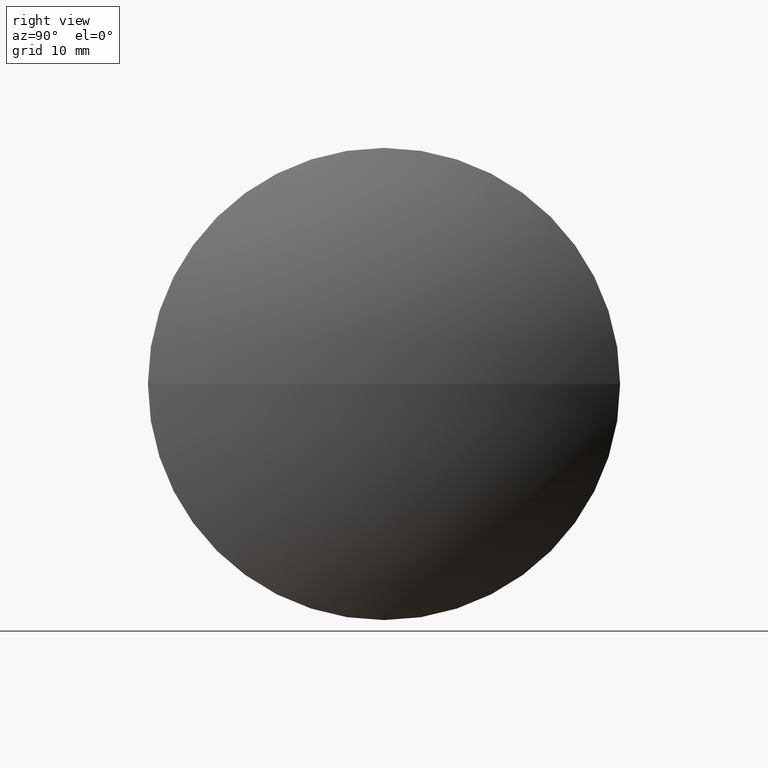
[diagram: clean part render]
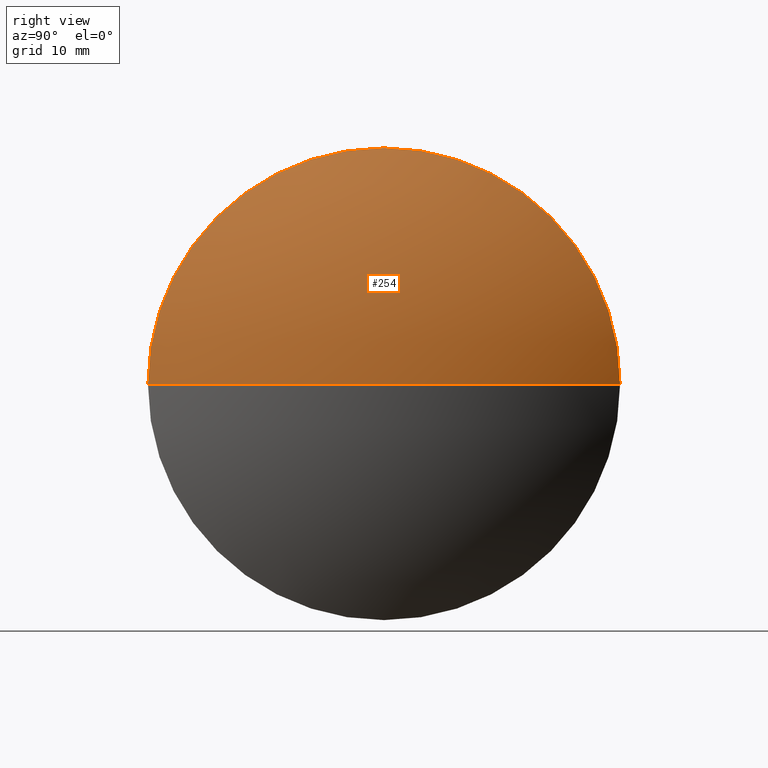
[diagram: same view with one face highlighted and labeled with its STEP entity id]
A machine part, right view. The second image highlights one B-rep face of the part: STEP entity #254.
In plain terms, the highlighted spherical surface has radius 63.8213 mm.
Its self-contained STEP definition (entity closure, byte-faithful):
#1 = CIRCLE ( 'NONE', #280, 63.82125822329528800 ) ;
#6 = DIRECTION ( 'NONE',  ( 1.739581850205384900E-015, 1.000000000000000000, 0.0000000000000000000 ) ) ;
#24 = EDGE_LOOP ( 'NONE', ( #208, #97, #81 ) ) ;
#35 = EDGE_CURVE ( 'NONE', #213, #155, #304, .T. ) ;
#42 = EDGE_CURVE ( 'NONE', #155, #67, #198, .T. ) ;
#51 = CARTESIAN_POINT ( 'NONE',  ( 196.5691230369240500, 133.9814138434226400, 0.0000000000000000000 ) ) ;
#60 = AXIS2_PLACEMENT_3D ( 'NONE', #242, #266, #220 ) ;
#67 = VERTEX_POINT ( 'NONE', #243 ) ;
#77 = DIRECTION ( 'NONE',  ( 2.171207935397061500E-031, 1.224646799147353200E-016, -1.000000000000000000 ) ) ;
#81 = ORIENTED_EDGE ( 'NONE', *, *, #42, .F. ) ;
#83 = FACE_OUTER_BOUND ( 'NONE', #24, .T. ) ;
#97 = ORIENTED_EDGE ( 'NONE', *, *, #126, .T. ) ;
#126 = EDGE_CURVE ( 'NONE', #213, #67, #1, .T. ) ;
#128 = DIRECTION ( 'NONE',  ( 0.0000000000000000000, 0.0000000000000000000, 1.000000000000000000 ) ) ;
#135 = CARTESIAN_POINT ( 'NONE',  ( 196.5691230369240500, 133.9814138434226400, 0.0000000000000000000 ) ) ;
#155 = VERTEX_POINT ( 'NONE', #218 ) ;
#157 = SPHERICAL_SURFACE ( 'NONE', #215, 63.82125822329528800 ) ;
#177 = DIRECTION ( 'NONE',  ( 1.000000000000000000, 0.0000000000000000000, 0.0000000000000000000 ) ) ;
#198 = CIRCLE ( 'NONE', #60, 35.00000000000005700 ) ;
#207 = AXIS2_PLACEMENT_3D ( 'NONE', #51, #77, #238 ) ;
#208 = ORIENTED_EDGE ( 'NONE', *, *, #35, .F. ) ;
#213 = VERTEX_POINT ( 'NONE', #298 ) ;
#215 = AXIS2_PLACEMENT_3D ( 'NONE', #135, #276, #6 ) ;
#218 = CARTESIAN_POINT ( 'NONE',  ( 249.9372127648178700, 98.98141384342245900, -4.286263797015745200E-015 ) ) ;
#220 = DIRECTION ( 'NONE',  ( -1.586032892321649700E-015, -1.000000000000000000, 0.0000000000000000000 ) ) ;
#238 = DIRECTION ( 'NONE',  ( 0.0000000000000000000, 1.000000000000000000, 1.224646799147353500E-016 ) ) ;
#242 = CARTESIAN_POINT ( 'NONE',  ( 249.9372127648179300, 133.9814138434225600, 0.0000000000000000000 ) ) ;
#243 = CARTESIAN_POINT ( 'NONE',  ( 249.9372127648179900, 168.9814138434226400, 0.0000000000000000000 ) ) ;
#245 = CARTESIAN_POINT ( 'NONE',  ( 196.5691230369240500, 133.9814138434226400, 0.0000000000000000000 ) ) ;
#254 = ADVANCED_FACE ( 'NONE', ( #83 ), #157, .T. ) ;
#266 = DIRECTION ( 'NONE',  ( -1.000000000000000000, 1.772925823926328100E-015, -0.0000000000000000000 ) ) ;
#276 = DIRECTION ( 'NONE',  ( 0.0000000000000000000, 0.0000000000000000000, -1.000000000000000000 ) ) ;
#280 = AXIS2_PLACEMENT_3D ( 'NONE', #245, #128, #177 ) ;
#298 = CARTESIAN_POINT ( 'NONE',  ( 260.3903812602193300, 133.9814138434225300, 0.0000000000000000000 ) ) ;
#304 = CIRCLE ( 'NONE', #207, 63.82125822329528800 ) ;